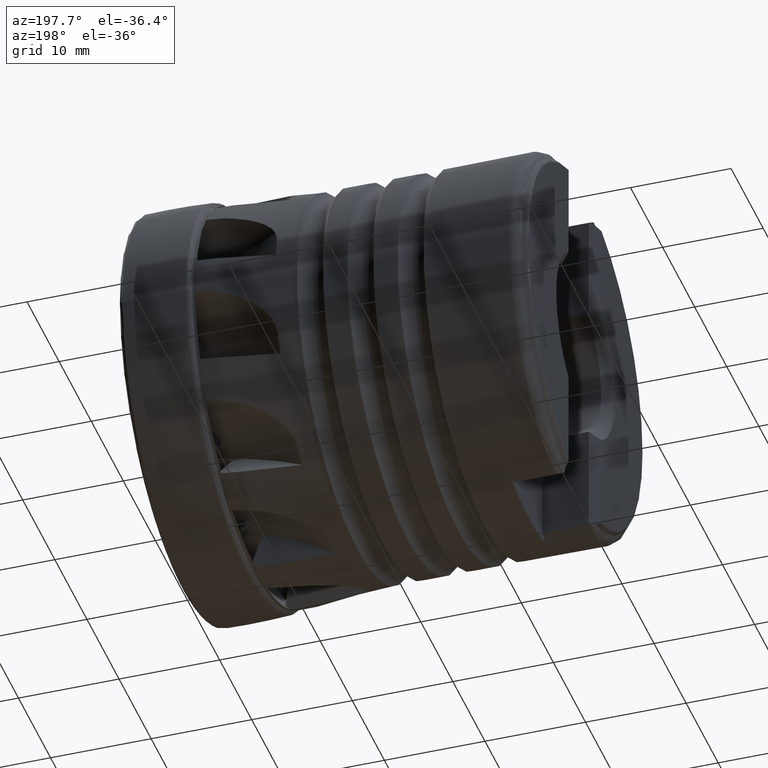
[diagram: clean part render]
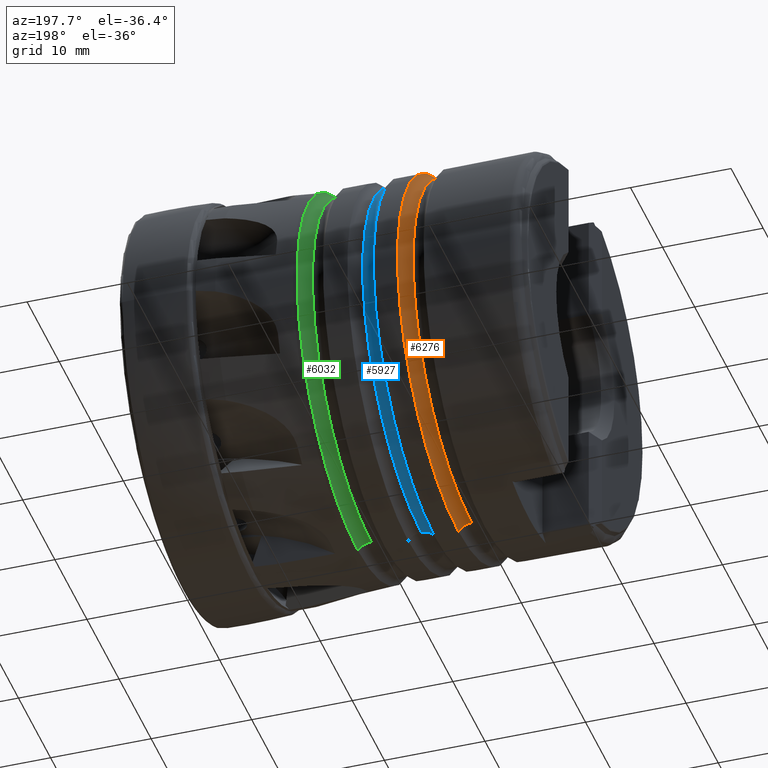
[diagram: same view with three faces highlighted in distinct colors, each labeled with its STEP entity id]
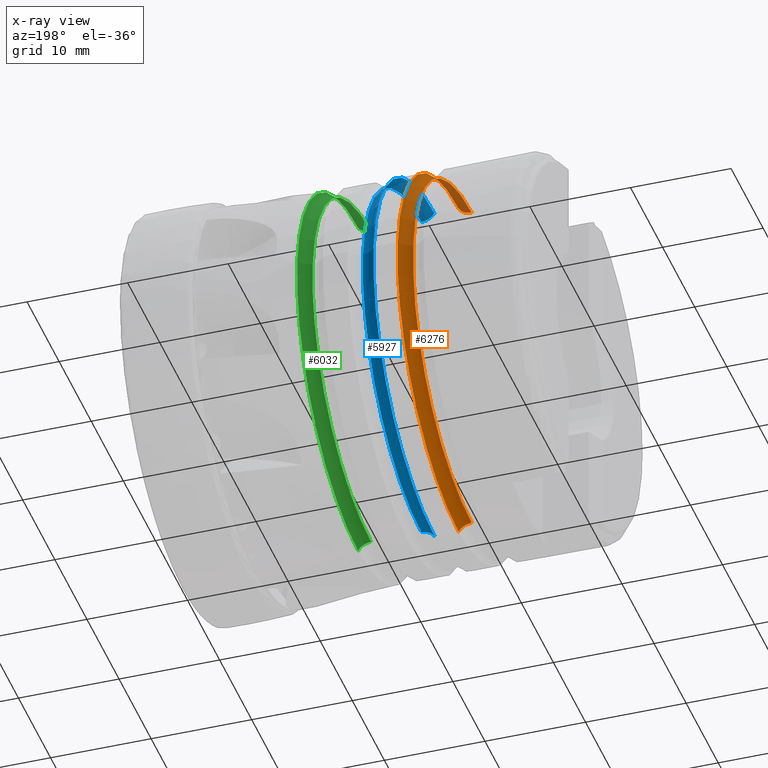
[diagram: x-ray of the same camera — body ghosted, the three highlighted faces saturated]
A machine part, auxiliary view with three faces highlighted in distinct colors.
The next image is the same camera in x-ray (body ghosted, the three faces saturated) — at least one of them is partly hidden behind the body in this view.
Their STEP definitions:

[orange] entity #6276 — the highlighted toroidal blend (fillet) surface has major radius 19.75 mm and minor (blend) radius 1.5 mm.
#103 = CARTESIAN_POINT ( 'NONE',  ( -28.24903810567665700, 0.0000000000000000000, -18.24999999999999600 ) ) ;
#109 = CARTESIAN_POINT ( 'NONE',  ( -26.94999999999999600, 0.0000000000000000000, -19.00000000000000000 ) ) ;
#682 = VERTEX_POINT ( 'NONE', #103 ) ;
#689 = VERTEX_POINT ( 'NONE', #109 ) ;
#960 = ORIENTED_EDGE ( 'NONE', *, *, #3460, .T. ) ;
#1275 = CARTESIAN_POINT ( 'NONE',  ( -28.24903810567665700, 2.418677428316022300E-015, 19.74999999999999600 ) ) ;
#1276 = DIRECTION ( 'NONE',  ( 0.0000000000000000000, 1.000000000000000000, -1.224646799147353200E-016 ) ) ;
#1277 = DIRECTION ( 'NONE',  ( 0.0000000000000000000, 1.224646799147352000E-016, 1.000000000000000000 ) ) ;
#1284 = CARTESIAN_POINT ( 'NONE',  ( -28.24903810567665700, 0.0000000000000000000, 0.0000000000000000000 ) ) ;
#1285 = DIRECTION ( 'NONE',  ( 1.000000000000000000, -0.0000000000000000000, -0.0000000000000000000 ) ) ;
#1286 = DIRECTION ( 'NONE',  ( 0.0000000000000000000, 0.0000000000000000000, -1.000000000000000000 ) ) ;
#1295 = CARTESIAN_POINT ( 'NONE',  ( -28.24903810567665700, 0.0000000000000000000, -19.74999999999999600 ) ) ;
#1296 = DIRECTION ( 'NONE',  ( -0.0000000000000000000, -1.000000000000000000, -0.0000000000000000000 ) ) ;
#1297 = DIRECTION ( 'NONE',  ( 0.0000000000000000000, 0.0000000000000000000, -1.000000000000000000 ) ) ;
#1298 = CARTESIAN_POINT ( 'NONE',  ( -26.94999999999999600, 0.0000000000000000000, 0.0000000000000000000 ) ) ;
#1299 = DIRECTION ( 'NONE',  ( 1.000000000000000000, -0.0000000000000000000, -0.0000000000000000000 ) ) ;
#1300 = DIRECTION ( 'NONE',  ( 0.0000000000000000000, 0.0000000000000000000, -1.000000000000000000 ) ) ;
#2083 = AXIS2_PLACEMENT_3D ( 'NONE', #1275, #1276, #1277 ) ;
#2086 = CIRCLE ( 'NONE', #2094, 1.500000000000001300 ) ;
#2094 = AXIS2_PLACEMENT_3D ( 'NONE', #1295, #1296, #1297 ) ;
#2097 = AXIS2_PLACEMENT_3D ( 'NONE', #1298, #1299, #1300 ) ;
#2102 = AXIS2_PLACEMENT_3D ( 'NONE', #1284, #1285, #1286 ) ;
#2112 = CIRCLE ( 'NONE', #2097, 19.00000000000000000 ) ;
#2115 = CIRCLE ( 'NONE', #2083, 1.500000000000001300 ) ;
#2137 = CIRCLE ( 'NONE', #2102, 18.24999999999999600 ) ;
#3198 = ORIENTED_EDGE ( 'NONE', *, *, #3461, .F. ) ;
#3200 = ORIENTED_EDGE ( 'NONE', *, *, #3457, .T. ) ;
#3201 = ORIENTED_EDGE ( 'NONE', *, *, #3454, .F. ) ;
#3454 = EDGE_CURVE ( 'NONE', #5312, #5307, #2115, .T. ) ;
#3457 = EDGE_CURVE ( 'NONE', #682, #5307, #2137, .T. ) ;
#3460 = EDGE_CURVE ( 'NONE', #689, #682, #2086, .T. ) ;
#3461 = EDGE_CURVE ( 'NONE', #689, #5312, #2112, .T. ) ;
#5307 = VERTEX_POINT ( 'NONE', #8312 ) ;
#5312 = VERTEX_POINT ( 'NONE', #8317 ) ;
#5569 = EDGE_LOOP ( 'NONE', ( #960, #3200, #3201, #3198 ) ) ;
#6276 = ADVANCED_FACE ( 'NONE', ( #9437 ), #6451, .F. ) ;
#6451 = TOROIDAL_SURFACE ( 'NONE', #6480, 19.74999999999999600, 1.500000000000001100 ) ;
#6480 = AXIS2_PLACEMENT_3D ( 'NONE', #9443, #9440, #9445 ) ;
#8312 = CARTESIAN_POINT ( 'NONE',  ( -28.24903810567665700, 2.234980408443919200E-015, 18.24999999999999600 ) ) ;
#8317 = CARTESIAN_POINT ( 'NONE',  ( -26.94999999999999600, 2.326828918379971000E-015, 19.00000000000000000 ) ) ;
#9437 = FACE_OUTER_BOUND ( 'NONE', #5569, .T. ) ;
#9440 = DIRECTION ( 'NONE',  ( 1.000000000000000000, -0.0000000000000000000, -0.0000000000000000000 ) ) ;
#9443 = CARTESIAN_POINT ( 'NONE',  ( -28.24903810567665700, 0.0000000000000000000, 0.0000000000000000000 ) ) ;
#9445 = DIRECTION ( 'NONE',  ( 0.0000000000000000000, 0.0000000000000000000, -1.000000000000000000 ) ) ;

[blue] entity #5927 — the highlighted toroidal blend (fillet) surface has major radius 19.75 mm and minor (blend) radius 1.5 mm.
#49 = CARTESIAN_POINT ( 'NONE',  ( -24.54807621135330800, 2.326828918379971000E-015, 19.00000000000000000 ) ) ;
#87 = CARTESIAN_POINT ( 'NONE',  ( -24.54807621135330800, 0.0000000000000000000, -19.00000000000000000 ) ) ;
#397 = VERTEX_POINT ( 'NONE', #49 ) ;
#435 = VERTEX_POINT ( 'NONE', #87 ) ;
#2621 = EDGE_LOOP ( 'NONE', ( #2694, #2696, #2698, #2700 ) ) ;
#2694 = ORIENTED_EDGE ( 'NONE', *, *, #8931, .F. ) ;
#2696 = ORIENTED_EDGE ( 'NONE', *, *, #9018, .T. ) ;
#2698 = ORIENTED_EDGE ( 'NONE', *, *, #9014, .T. ) ;
#2700 = ORIENTED_EDGE ( 'NONE', *, *, #9016, .F. ) ;
#2877 = TOROIDAL_SURFACE ( 'NONE', #6932, 19.75000000000000000, 1.499999999999999800 ) ;
#5313 = VERTEX_POINT ( 'NONE', #8318 ) ;
#5320 = VERTEX_POINT ( 'NONE', #8325 ) ;
#5927 = ADVANCED_FACE ( 'NONE', ( #7148 ), #2877, .F. ) ;
#6600 = CIRCLE ( 'NONE', #6610, 18.25000000000000000 ) ;
#6610 = AXIS2_PLACEMENT_3D ( 'NONE', #8633, #8634, #8635 ) ;
#6698 = CIRCLE ( 'NONE', #6700, 19.00000000000000000 ) ;
#6700 = AXIS2_PLACEMENT_3D ( 'NONE', #10489, #10490, #10491 ) ;
#6701 = CIRCLE ( 'NONE', #6703, 1.500000000000001300 ) ;
#6703 = AXIS2_PLACEMENT_3D ( 'NONE', #10493, #10494, #10495 ) ;
#6704 = CIRCLE ( 'NONE', #6707, 1.500000000000001300 ) ;
#6707 = AXIS2_PLACEMENT_3D ( 'NONE', #10502, #10503, #10504 ) ;
#6932 = AXIS2_PLACEMENT_3D ( 'NONE', #7149, #7145, #7151 ) ;
#7145 = DIRECTION ( 'NONE',  ( 1.000000000000000000, -0.0000000000000000000, -0.0000000000000000000 ) ) ;
#7148 = FACE_OUTER_BOUND ( 'NONE', #2621, .T. ) ;
#7149 = CARTESIAN_POINT ( 'NONE',  ( -23.24903810567665000, 0.0000000000000000000, 0.0000000000000000000 ) ) ;
#7151 = DIRECTION ( 'NONE',  ( 0.0000000000000000000, 0.0000000000000000000, -1.000000000000000000 ) ) ;
#8318 = CARTESIAN_POINT ( 'NONE',  ( -23.24903810567665000, 0.0000000000000000000, -18.25000000000000000 ) ) ;
#8325 = CARTESIAN_POINT ( 'NONE',  ( -23.24903810567665000, 2.234980408443919200E-015, 18.25000000000000000 ) ) ;
#8633 = CARTESIAN_POINT ( 'NONE',  ( -23.24903810567665000, 0.0000000000000000000, 0.0000000000000000000 ) ) ;
#8634 = DIRECTION ( 'NONE',  ( 1.000000000000000000, -0.0000000000000000000, -0.0000000000000000000 ) ) ;
#8635 = DIRECTION ( 'NONE',  ( 0.0000000000000000000, 0.0000000000000000000, -1.000000000000000000 ) ) ;
#8931 = EDGE_CURVE ( 'NONE', #5313, #5320, #6600, .T. ) ;
#9014 = EDGE_CURVE ( 'NONE', #435, #397, #6698, .T. ) ;
#9016 = EDGE_CURVE ( 'NONE', #5320, #397, #6701, .T. ) ;
#9018 = EDGE_CURVE ( 'NONE', #5313, #435, #6704, .T. ) ;
#10489 = CARTESIAN_POINT ( 'NONE',  ( -24.54807621135330800, 0.0000000000000000000, 0.0000000000000000000 ) ) ;
#10490 = DIRECTION ( 'NONE',  ( 1.000000000000000000, -0.0000000000000000000, -0.0000000000000000000 ) ) ;
#10491 = DIRECTION ( 'NONE',  ( 0.0000000000000000000, 0.0000000000000000000, -1.000000000000000000 ) ) ;
#10493 = CARTESIAN_POINT ( 'NONE',  ( -23.24903810567665000, 2.418677428316022700E-015, 19.75000000000000000 ) ) ;
#10494 = DIRECTION ( 'NONE',  ( 0.0000000000000000000, 1.000000000000000000, -1.224646799147353200E-016 ) ) ;
#10495 = DIRECTION ( 'NONE',  ( 0.0000000000000000000, 1.224646799147352000E-016, 1.000000000000000000 ) ) ;
#10502 = CARTESIAN_POINT ( 'NONE',  ( -23.24903810567665000, 0.0000000000000000000, -19.75000000000000000 ) ) ;
#10503 = DIRECTION ( 'NONE',  ( -0.0000000000000000000, -1.000000000000000000, -0.0000000000000000000 ) ) ;
#10504 = DIRECTION ( 'NONE',  ( 0.0000000000000000000, 0.0000000000000000000, -1.000000000000000000 ) ) ;

[green] entity #6032 — the highlighted toroidal blend (fillet) surface has major radius 19.75 mm and minor (blend) radius 1.5 mm.
#107 = CARTESIAN_POINT ( 'NONE',  ( -18.24903810567665000, 2.234980408443919200E-015, 18.25000000000000000 ) ) ;
#108 = CARTESIAN_POINT ( 'NONE',  ( -16.94999999999999200, 2.326828918379971000E-015, 19.00000000000000000 ) ) ;
#687 = VERTEX_POINT ( 'NONE', #107 ) ;
#688 = VERTEX_POINT ( 'NONE', #108 ) ;
#1278 = CARTESIAN_POINT ( 'NONE',  ( -18.24903810567665000, 0.0000000000000000000, 0.0000000000000000000 ) ) ;
#1279 = DIRECTION ( 'NONE',  ( 1.000000000000000000, -0.0000000000000000000, -0.0000000000000000000 ) ) ;
#1280 = DIRECTION ( 'NONE',  ( 0.0000000000000000000, 0.0000000000000000000, -1.000000000000000000 ) ) ;
#1291 = CARTESIAN_POINT ( 'NONE',  ( -18.24903810567665000, 2.418677428316022700E-015, 19.75000000000000000 ) ) ;
#1292 = DIRECTION ( 'NONE',  ( 0.0000000000000000000, 1.000000000000000000, -1.224646799147353200E-016 ) ) ;
#1293 = DIRECTION ( 'NONE',  ( 0.0000000000000000000, 1.224646799147352000E-016, 1.000000000000000000 ) ) ;
#1632 = FACE_OUTER_BOUND ( 'NONE', #5582, .T. ) ;
#1634 = DIRECTION ( 'NONE',  ( 1.000000000000000000, -0.0000000000000000000, -0.0000000000000000000 ) ) ;
#1637 = CARTESIAN_POINT ( 'NONE',  ( -18.24903810567665000, 0.0000000000000000000, 0.0000000000000000000 ) ) ;
#1639 = DIRECTION ( 'NONE',  ( 0.0000000000000000000, 0.0000000000000000000, -1.000000000000000000 ) ) ;
#2096 = CIRCLE ( 'NONE', #2109, 1.500000000000001300 ) ;
#2104 = CIRCLE ( 'NONE', #2136, 18.25000000000000000 ) ;
#2109 = AXIS2_PLACEMENT_3D ( 'NONE', #1291, #1292, #1293 ) ;
#2136 = AXIS2_PLACEMENT_3D ( 'NONE', #1278, #1279, #1280 ) ;
#2333 = ORIENTED_EDGE ( 'NONE', *, *, #8934, .T. ) ;
#2335 = ORIENTED_EDGE ( 'NONE', *, *, #3459, .F. ) ;
#2337 = ORIENTED_EDGE ( 'NONE', *, *, #8932, .F. ) ;
#2338 = ORIENTED_EDGE ( 'NONE', *, *, #3455, .T. ) ;
#3455 = EDGE_CURVE ( 'NONE', #5292, #687, #2104, .T. ) ;
#3459 = EDGE_CURVE ( 'NONE', #688, #687, #2096, .T. ) ;
#4981 = TOROIDAL_SURFACE ( 'NONE', #4984, 19.75000000000000000, 1.499999999999999800 ) ;
#4984 = AXIS2_PLACEMENT_3D ( 'NONE', #1637, #1634, #1639 ) ;
#5292 = VERTEX_POINT ( 'NONE', #8298 ) ;
#5303 = VERTEX_POINT ( 'NONE', #8308 ) ;
#5582 = EDGE_LOOP ( 'NONE', ( #2333, #2338, #2335, #2337 ) ) ;
#6032 = ADVANCED_FACE ( 'NONE', ( #1632 ), #4981, .F. ) ;
#6607 = CIRCLE ( 'NONE', #6612, 19.00000000000000000 ) ;
#6612 = AXIS2_PLACEMENT_3D ( 'NONE', #8637, #8638, #8639 ) ;
#6613 = CIRCLE ( 'NONE', #6616, 1.500000000000001300 ) ;
#6616 = AXIS2_PLACEMENT_3D ( 'NONE', #8647, #8648, #8649 ) ;
#8298 = CARTESIAN_POINT ( 'NONE',  ( -18.24903810567665000, 0.0000000000000000000, -18.25000000000000000 ) ) ;
#8308 = CARTESIAN_POINT ( 'NONE',  ( -16.94999999999999200, 0.0000000000000000000, -19.00000000000000000 ) ) ;
#8637 = CARTESIAN_POINT ( 'NONE',  ( -16.94999999999999200, 0.0000000000000000000, 0.0000000000000000000 ) ) ;
#8638 = DIRECTION ( 'NONE',  ( 1.000000000000000000, -0.0000000000000000000, -0.0000000000000000000 ) ) ;
#8639 = DIRECTION ( 'NONE',  ( 0.0000000000000000000, 0.0000000000000000000, -1.000000000000000000 ) ) ;
#8647 = CARTESIAN_POINT ( 'NONE',  ( -18.24903810567665000, 0.0000000000000000000, -19.75000000000000000 ) ) ;
#8648 = DIRECTION ( 'NONE',  ( -0.0000000000000000000, -1.000000000000000000, -0.0000000000000000000 ) ) ;
#8649 = DIRECTION ( 'NONE',  ( 0.0000000000000000000, 0.0000000000000000000, -1.000000000000000000 ) ) ;
#8932 = EDGE_CURVE ( 'NONE', #5303, #688, #6607, .T. ) ;
#8934 = EDGE_CURVE ( 'NONE', #5303, #5292, #6613, .T. ) ;